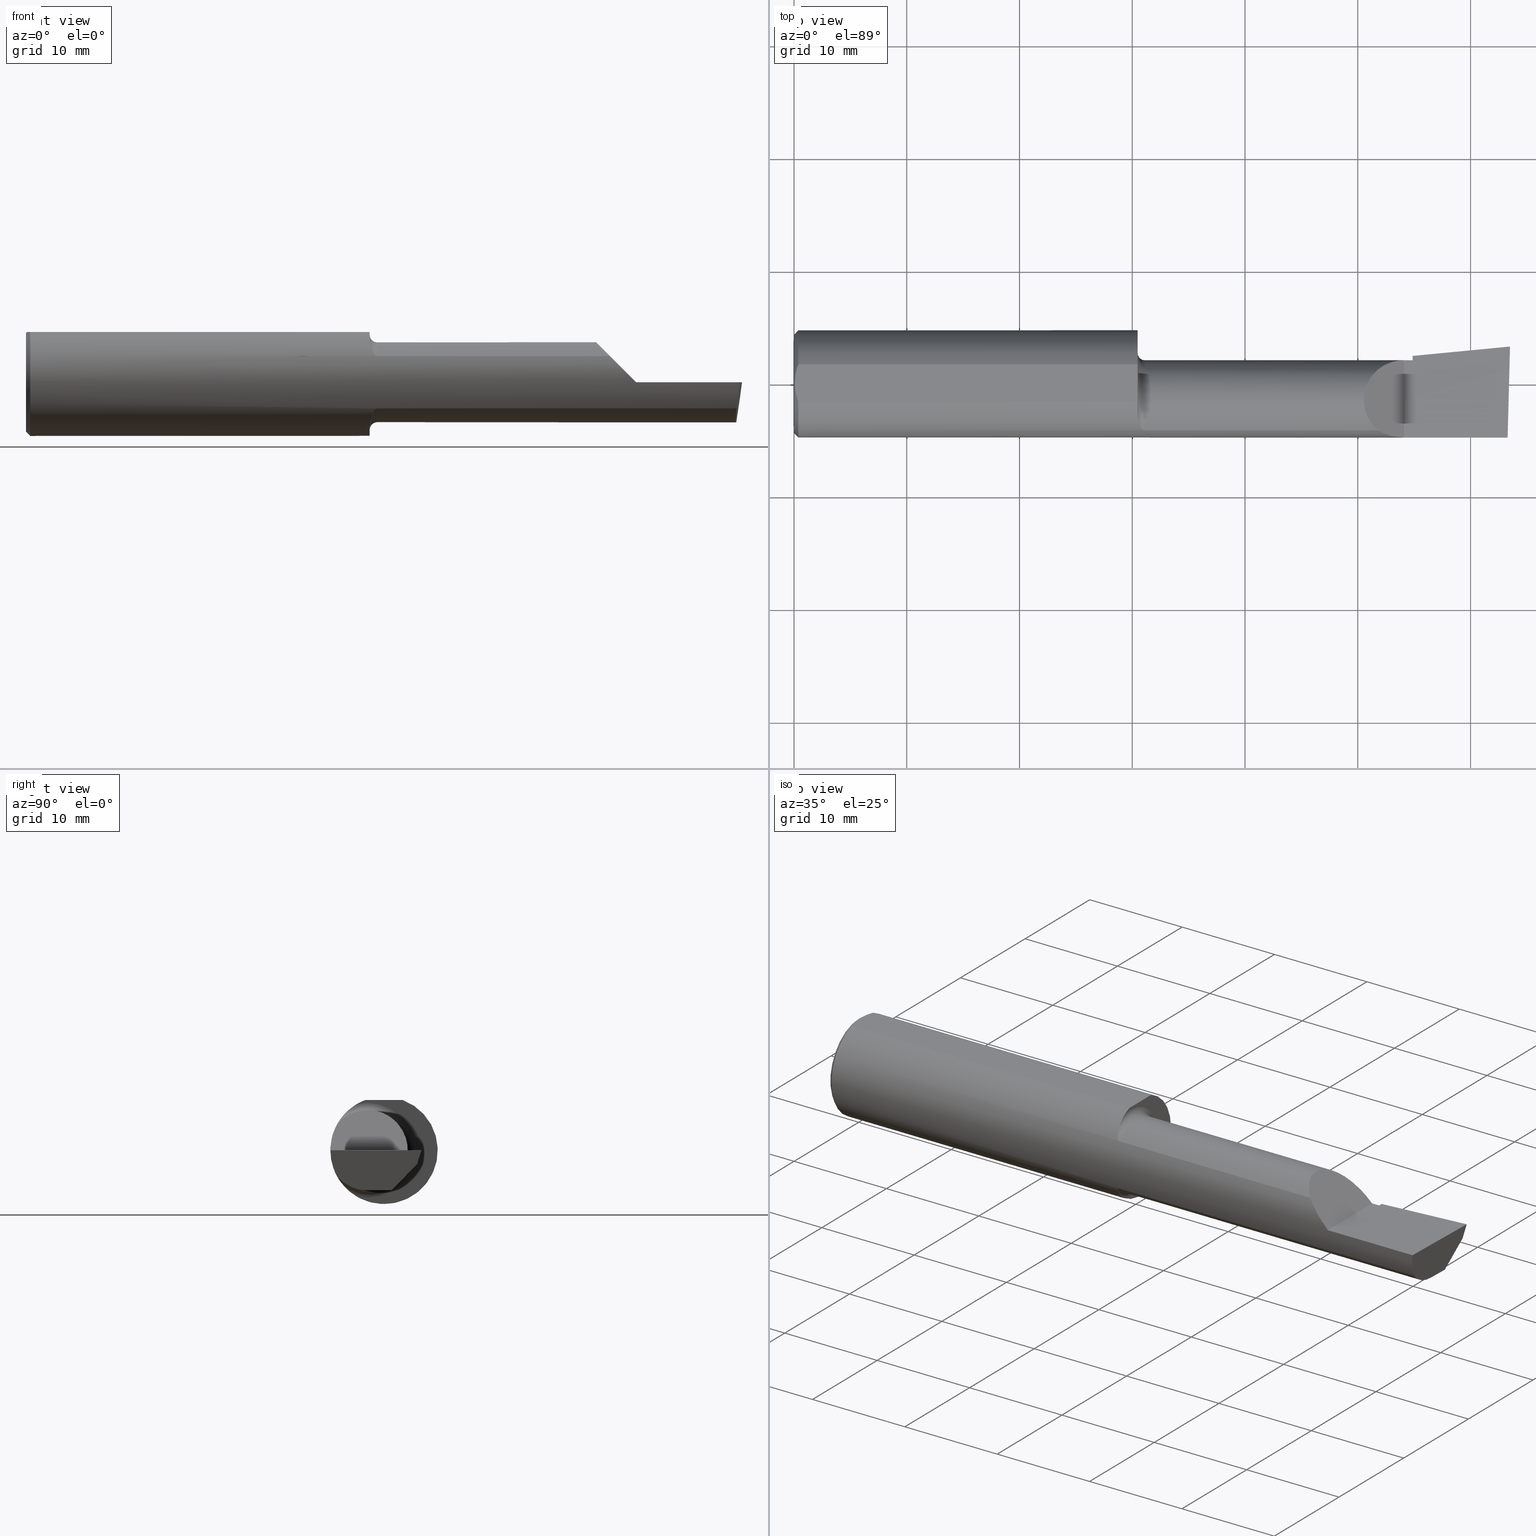
[diagram: canonical four-view strip — front | top / right | iso, engineering-drawing reading convention]
A machine part, canonical four-view strip (front | top / right | iso — engineering-drawing reading convention). The complete STEP part file that produces these views, byte-faithful:
ISO-10303-21;
HEADER;
FILE_DESCRIPTION (( 'STEP AP203' ),
    '1' );
FILE_NAME ('217486-B3201250.STEP',
    '2024-04-26T19:23:14',
    ( '' ),
    ( '' ),
    'SwSTEP 2.0',
    'SolidWorks 2022',
    '' );
FILE_SCHEMA (( 'CONFIG_CONTROL_DESIGN' ));
ENDSEC;

DATA;
#1 = ORIENTED_EDGE ( 'NONE', *, *, #584, .F. ) ;
#2 = APPROVAL_DATE_TIME ( #190, #136 ) ;
#3 = ORIENTED_EDGE ( 'NONE', *, *, #46, .F. ) ;
#4 = LOCAL_TIME ( 12, 23, 14.00000000000000000, #89 ) ;
#5 = ADVANCED_FACE ( 'NONE', ( #100 ), #456, .F. ) ;
#6 = CARTESIAN_POINT ( 'NONE',  ( 2.066758987970638284, -0.1792580844883770730, 0.06324101202936138755 ) ) ;
#7 = ORIENTED_EDGE ( 'NONE', *, *, #411, .F. ) ;
#8 = APPROVAL_ROLE ( '' ) ;
#9 = CARTESIAN_POINT ( 'NONE',  ( 2.038695632261437130, -0.1635956445993029529, 0.09130436773856188959 ) ) ;
#10 = EDGE_CURVE ( 'NONE', #245, #576, #148, .T. ) ;
#11 = ORIENTED_EDGE ( 'NONE', *, *, #156, .F. ) ;
#12 = ADVANCED_FACE ( 'NONE', ( #348 ), #497, .T. ) ;
#13 = AXIS2_PLACEMENT_3D ( 'NONE', #99, #603, #356 ) ;
#14 = DIRECTION ( 'NONE',  ( -0.9953961983671800740, -0.09584575252021031166, 0.000000000000000000 ) ) ;
#15 = LOCAL_TIME ( 12, 23, 14.00000000000000000, #588 ) ;
#16 = ORIENTED_EDGE ( 'NONE', *, *, #217, .T. ) ;
#17 = FACE_OUTER_BOUND ( 'NONE', #329, .T. ) ;
#18 = DIRECTION ( 'NONE',  ( 0.000000000000000000, 0.000000000000000000, 1.000000000000000000 ) ) ;
#19 = CARTESIAN_POINT ( 'NONE',  ( 1.199999999999999956, -0.05740000000000000657, 0.000000000000000000 ) ) ;
#20 = FACE_OUTER_BOUND ( 'NONE', #145, .T. ) ;
#21 = AXIS2_PLACEMENT_3D ( 'NONE', #495, #151, #500 ) ;
#22 = DIRECTION ( 'NONE',  ( 0.000000000000000000, 0.000000000000000000, 1.000000000000000000 ) ) ;
#23 = CARTESIAN_POINT ( 'NONE',  ( 1.199999999999999956, -0.09715400696864127938, 0.1601908905959923690 ) ) ;
#24 = CARTESIAN_POINT ( 'NONE',  ( 2.160000000000000142, -0.05739999999999999963, 0.000000000000000000 ) ) ;
#25 = ORIENTED_EDGE ( 'NONE', *, *, #63, .F. ) ;
#26 = CARTESIAN_POINT ( 'NONE',  ( 1.218001859868117043, -0.1612625562479372554, 0.09537826053888157074 ) ) ;
#27 = DIRECTION ( 'NONE',  ( -1.000000000000000000, -0.000000000000000000, -0.000000000000000000 ) ) ;
#28 = EDGE_CURVE ( 'NONE', #187, #472, #323, .T. ) ;
#29 = VERTEX_POINT ( 'NONE', #387 ) ;
#30 = DIRECTION ( 'NONE',  ( -1.000000000000000000, -6.829619984160658046E-18, 0.000000000000000000 ) ) ;
#31 = CIRCLE ( 'NONE', #340, 0.1400499999999999245 ) ;
#32 = DIRECTION ( 'NONE',  ( 0.000000000000000000, 1.000000000000000000, 0.000000000000000000 ) ) ;
#33 = ORGANIZATION ( 'UNSPECIFIED', 'UNSPECIFIED', '' ) ;
#34 = DIRECTION ( 'NONE',  ( 4.755568962650853567E-18, -0.6963153109074925462, -0.7177360153954948085 ) ) ;
#35 = DIRECTION ( 'NONE',  ( -1.000000000000000000, -6.829619984160658046E-18, 0.000000000000000000 ) ) ;
#36 = ORIENTED_EDGE ( 'NONE', *, *, #164, .T. ) ;
#37 = CARTESIAN_POINT ( 'NONE',  ( 1.199999999999999956, 0.2373500000000000332, 0.1753499999999999504 ) ) ;
#38 = CARTESIAN_POINT ( 'NONE',  ( 1.206145841430604104, -0.1426194794824340584, -0.1217813759115465855 ) ) ;
#39 = ORIENTED_EDGE ( 'NONE', *, *, #242, .F. ) ;
#40 = PERSON_AND_ORGANIZATION ( #272, #33 ) ;
#41 = CARTESIAN_POINT ( 'NONE',  ( 2.129999999999999893, -0.1873499999999999888, 1.065442715258197396E-16 ) ) ;
#42 = VERTEX_POINT ( 'NONE', #310 ) ;
#43 = APPROVAL ( #132, 'UNSPECIFIED' ) ;
#44 = ORIENTED_EDGE ( 'NONE', *, *, #156, .T. ) ;
#45 = ORIENTED_EDGE ( 'NONE', *, *, #545, .T. ) ;
#46 = EDGE_CURVE ( 'NONE', #237, #618, #129, .T. ) ;
#47 = PERSON_AND_ORGANIZATION_ROLE ( 'creator' ) ;
#48 = B_SPLINE_CURVE_WITH_KNOTS ( 'NONE', 3,
 ( #467, #374, #133, #83, #93, #174, #275, #328, #38, #424, #537, #475, #491, #182 ),
 .UNSPECIFIED., .F., .F.,
 ( 4, 2, 2, 2, 2, 2, 4 ),
 ( 1.968340875534775581E-07, 0.0001667114270246291413, 0.0003332260199617048126, 0.0006662552058358523063, 0.001332313577584147294, 0.001998371949332442606, 0.002664430321080737702 ),
 .UNSPECIFIED. ) ;
#49 = VERTEX_POINT ( 'NONE', #453 ) ;
#50 =( NAMED_UNIT ( * ) SI_UNIT ( $, .STERADIAN. ) SOLID_ANGLE_UNIT ( ) );
#51 = PLANE ( 'NONE',  #468 ) ;
#52 = ORIENTED_EDGE ( 'NONE', *, *, #518, .T. ) ;
#53 = DIRECTION ( 'NONE',  ( 1.000000000000000000, 0.000000000000000000, 0.000000000000000000 ) ) ;
#54 = VERTEX_POINT ( 'NONE', #121 ) ;
#55 = FACE_OUTER_BOUND ( 'NONE', #351, .T. ) ;
#56 = ORIENTED_EDGE ( 'NONE', *, *, #28, .F. ) ;
#57 = DATE_AND_TIME ( #450, #15 ) ;
#58 = VECTOR ( 'NONE', #573, 39.37007874015748143 ) ;
#59 = LINE ( 'NONE', #598, #220 ) ;
#60 = EDGE_CURVE ( 'NONE', #175, #54, #579, .T. ) ;
#61 = DIRECTION ( 'NONE',  ( -1.000000000000000000, -6.829619984160658046E-18, -0.000000000000000000 ) ) ;
#62 = DIRECTION ( 'NONE',  ( -1.000000000000000000, -6.829619984160658046E-18, -0.000000000000000000 ) ) ;
#63 = EDGE_CURVE ( 'NONE', #54, #175, #181, .T. ) ;
#64 = CARTESIAN_POINT ( 'NONE',  ( 1.921229036482944075, -0.06260079402492431389, 0.2087709635170537925 ) ) ;
#65 = CARTESIAN_POINT ( 'NONE',  ( 1.199999999999999956, -0.06597272163553659363, 0.1753499999999999781 ) ) ;
#66 = CIRCLE ( 'NONE', #306, 0.1873499999999999888 ) ;
#67 = AXIS2_PLACEMENT_3D ( 'NONE', #494, #155, #309 ) ;
#68 = FACE_OUTER_BOUND ( 'NONE', #281, .T. ) ;
#69 = CARTESIAN_POINT ( 'NONE',  ( 1.208072954143140088, -0.1479074971576200548, 0.1152872342625229363 ) ) ;
#70 = EDGE_CURVE ( 'NONE', #342, #364, #505, .T. ) ;
#71 = CARTESIAN_POINT ( 'NONE',  ( 0.003000000000000169632, 0.01127363201155560934, 0.1753499999999999781 ) ) ;
#72 = ORIENTED_EDGE ( 'NONE', *, *, #177, .F. ) ;
#73 = FACE_OUTER_BOUND ( 'NONE', #147, .T. ) ;
#74 = CYLINDRICAL_SURFACE ( 'NONE', #171, 0.1873499999999999888 ) ;
#75 = LINE ( 'NONE', #114, #120 ) ;
#76 = VECTOR ( 'NONE', #319, 39.37007874015748854 ) ;
#77 = CARTESIAN_POINT ( 'NONE',  ( 2.477925907309857401, -0.1365595166907236646, -0.1227499502647107360 ) ) ;
#78 = ADVANCED_FACE ( 'NONE', ( #559 ), #357, .F. ) ;
#79 = VERTEX_POINT ( 'NONE', #354 ) ;
#80 = DIRECTION ( 'NONE',  ( -0.7071067811865439090, 0.000000000000000000, -0.7071067811865512365 ) ) ;
#81 = LINE ( 'NONE', #280, #538 ) ;
#82 = ORIENTED_EDGE ( 'NONE', *, *, #263, .F. ) ;
#83 = CARTESIAN_POINT ( 'NONE',  ( 1.217975941902153636, -0.1612443294219082224, -0.09540922431498180534 ) ) ;
#84 = ORIENTED_EDGE ( 'NONE', *, *, #223, .T. ) ;
#85 = DIRECTION ( 'NONE',  ( 0.000000000000000000, 0.000000000000000000, 1.000000000000000000 ) ) ;
#86 = VECTOR ( 'NONE', #525, 39.37007874015748143 ) ;
#87 = ORIENTED_EDGE ( 'NONE', *, *, #10, .F. ) ;
#88 = AXIS2_PLACEMENT_3D ( 'NONE', #262, #80, #312 ) ;
#89 = COORDINATED_UNIVERSAL_TIME_OFFSET ( 8, 0, .BEHIND. ) ;
#90 = EDGE_CURVE ( 'NONE', #332, #218, #283, .T. ) ;
#91 = EDGE_LOOP ( 'NONE', ( #25, #487, #36, #179, #479 ) ) ;
#92 = ORIENTED_EDGE ( 'NONE', *, *, #63, .T. ) ;
#93 = CARTESIAN_POINT ( 'NONE',  ( 1.216814909379088760, -0.1602818635245160106, -0.09702252612905261364 ) ) ;
#94 = EDGE_LOOP ( 'NONE', ( #543, #39, #252 ) ) ;
#95 = ADVANCED_FACE ( 'NONE', ( #17 ), #74, .T. ) ;
#96 = AXIS2_PLACEMENT_3D ( 'NONE', #259, #208, #403 ) ;
#97 = PERSON_AND_ORGANIZATION ( #272, #33 ) ;
#98 = AXIS2_PLACEMENT_3D ( 'NONE', #513, #320, #226 ) ;
#99 = CARTESIAN_POINT ( 'NONE',  ( 1.199999999999999956, 0.1076499999999999124, 0.000000000000000000 ) ) ;
#100 = FACE_OUTER_BOUND ( 'NONE', #276, .T. ) ;
#101 = APPROVAL_STATUS ( 'not_yet_approved' ) ;
#102 = LINE ( 'NONE', #112, #250 ) ;
#103 = VERTEX_POINT ( 'NONE', #157 ) ;
#104 = LINE ( 'NONE', #498, #600 ) ;
#105 =( BOUNDED_CURVE ( )  B_SPLINE_CURVE ( 3, ( #617, #77, #337, #522 ),
 .UNSPECIFIED., .F., .T. ) 
 B_SPLINE_CURVE_WITH_KNOTS ( ( 4, 4 ),
 ( 5.632580117768154260, 6.493234751459282528 ),
 .UNSPECIFIED. ) 
 CURVE ( )  GEOMETRIC_REPRESENTATION_ITEM ( )  RATIONAL_B_SPLINE_CURVE ( ( 1.000000000000000000, 0.9392195014330942948, 0.9392195014330942948, 1.000000000000000000 ) ) 
 REPRESENTATION_ITEM ( '' )  );
#106 = B_SPLINE_CURVE_WITH_KNOTS ( 'NONE', 3,
 ( #464, #172, #602, #368, #563, #162 ),
 .UNSPECIFIED., .F., .F.,
 ( 4, 2, 4 ),
 ( 0.001779942938356815062, 0.002629978419973711019, 0.003480013901590607410 ),
 .UNSPECIFIED. ) ;
#107 = ORIENTED_EDGE ( 'NONE', *, *, #90, .T. ) ;
#108 = VECTOR ( 'NONE', #396, 39.37007874015748143 ) ;
#109 = CARTESIAN_POINT ( 'NONE',  ( 2.493766568580444432, 0.1168246249203733628, -0.04780233936830585728 ) ) ;
#110 = CARTESIAN_POINT ( 'NONE',  ( 0.01499999999999999424, 0.06597272163553663527, 0.1753499999999999781 ) ) ;
#111 = ADVANCED_FACE ( 'NONE', ( #554 ), #551, .F. ) ;
#112 = CARTESIAN_POINT ( 'NONE',  ( 0.01499999999999999424, 2.294375778202566330E-17, 0.1873499999999999888 ) ) ;
#113 = DIRECTION ( 'NONE',  ( 0.000000000000000000, -1.000000000000000000, -1.776356839400250465E-15 ) ) ;
#114 = CARTESIAN_POINT ( 'NONE',  ( 2.160000000000000142, 0.06382066673065307782, -0.06931012851386068874 ) ) ;
#115 = DIRECTION ( 'NONE',  ( 2.005228508682077051E-18, -0.2936076258024061247, -0.9559260233253795702 ) ) ;
#116 = EDGE_CURVE ( 'NONE', #529, #383, #549, .T. ) ;
#117 = VERTEX_POINT ( 'NONE', #400 ) ;
#118 = CARTESIAN_POINT ( 'NONE',  ( 2.160000000000000142, 0.06382066673065307782, -0.06931012851386068874 ) ) ;
#119 = EDGE_CURVE ( 'NONE', #243, #245, #394, .T. ) ;
#120 = VECTOR ( 'NONE', #418, 39.37007874015748143 ) ;
#121 = CARTESIAN_POINT ( 'NONE',  ( 0.000000000000000000, 2.202527268266512578E-17, 0.1723499999999996424 ) ) ;
#122 = ORIENTED_EDGE ( 'NONE', *, *, #60, .T. ) ;
#123 = FACE_OUTER_BOUND ( 'NONE', #94, .T. ) ;
#124 = DIRECTION ( 'NONE',  ( -1.000000000000000000, -0.000000000000000000, -0.000000000000000000 ) ) ;
#125 = LINE ( 'NONE', #616, #140 ) ;
#126 = CARTESIAN_POINT ( 'NONE',  ( 0.000000000000000000, 0.000000000000000000, -0.1723499999999996424 ) ) ;
#127 = EDGE_LOOP ( 'NONE', ( #154, #45 ) ) ;
#128 = CARTESIAN_POINT ( 'NONE',  ( 1.206142321956750418, -0.1426151417460931881, 0.1217894822571231050 ) ) ;
#129 = CIRCLE ( 'NONE', #589, 0.1400499999999999801 ) ;
#130 = CARTESIAN_POINT ( 'NONE',  ( 2.160000000000000142, 0.01441505128072288582, -0.1202356058309980713 ) ) ;
#131 = ORIENTED_EDGE ( 'NONE', *, *, #119, .F. ) ;
#132 = APPROVAL_STATUS ( 'not_yet_approved' ) ;
#133 = CARTESIAN_POINT ( 'NONE',  ( 1.220881499230870304, -0.1628722075910993550, -0.09260290410947824569 ) ) ;
#134 = ORIENTED_EDGE ( 'NONE', *, *, #279, .F. ) ;
#135 = ORIENTED_EDGE ( 'NONE', *, *, #501, .F. ) ;
#136 = APPROVAL ( #388, 'UNSPECIFIED' ) ;
#137 = CALENDAR_DATE ( 2024, 26, 4 ) ;
#138 = AXIS2_PLACEMENT_3D ( 'NONE', #304, #352, #210 ) ;
#139 = EDGE_LOOP ( 'NONE', ( #305, #567, #295, #608, #476 ) ) ;
#140 = VECTOR ( 'NONE', #568, 39.37007874015748143 ) ;
#141 = LENGTH_MEASURE_WITH_UNIT ( LENGTH_MEASURE( 0.02539999999999999897 ), #527 );
#142 = DIRECTION ( 'NONE',  ( 6.829619984160658816E-18, -1.000000000000000000, 0.000000000000000000 ) ) ;
#143 = PERSON_AND_ORGANIZATION_ROLE ( 'design_supplier' ) ;
#144 = CARTESIAN_POINT ( 'NONE',  ( 2.481080296960508580, -0.1635956445993030639, -0.09130436773856169530 ) ) ;
#145 = EDGE_LOOP ( 'NONE', ( #574, #379, #326, #189, #361, #526 ) ) ;
#146 = DIRECTION ( 'NONE',  ( 0.000000000000000000, 1.000000000000000000, 8.537024980200821325E-17 ) ) ;
#147 = EDGE_LOOP ( 'NONE', ( #11, #612, #194 ) ) ;
#148 = CIRCLE ( 'NONE', #21, 0.1873499999999999888 ) ;
#149 = CC_DESIGN_APPROVAL ( #288, ( #624 ) ) ;
#150 = CARTESIAN_POINT ( 'NONE',  ( 2.160000000000000142, 0.08255448787293394319, -0.04999999999999999584 ) ) ;
#151 = DIRECTION ( 'NONE',  ( 1.000000000000000000, 6.829619984160658046E-18, 0.000000000000000000 ) ) ;
#152 = ADVANCED_FACE ( 'NONE', ( #68 ), #360, .T. ) ;
#153 = PLANE ( 'NONE',  #138 ) ;
#154 = ORIENTED_EDGE ( 'NONE', *, *, #46, .T. ) ;
#155 = DIRECTION ( 'NONE',  ( -0.06894566448119619773, 0.7160281025913034503, -0.6946583704589934793 ) ) ;
#156 = EDGE_CURVE ( 'NONE', #237, #184, #558, .T. ) ;
#157 = CARTESIAN_POINT ( 'NONE',  ( 1.225000000000000089, -0.1635956445993032859, -0.09130436773856132060 ) ) ;
#158 = APPROVAL_DATE_TIME ( #349, #288 ) ;
#159 = AXIS2_PLACEMENT_3D ( 'NONE', #248, #61, #202 ) ;
#160 = CARTESIAN_POINT ( 'NONE',  ( 0.000000000000000000, 0.06597272163553663527, 0.1753499999999999781 ) ) ;
#161 = CC_DESIGN_APPROVAL ( #43, ( #439 ) ) ;
#162 = CARTESIAN_POINT ( 'NONE',  ( 0.003000000000000218638, 2.334609556160449697E-17, 0.1753499999999999781 ) ) ;
#163 = DIRECTION ( 'NONE',  ( -1.000000000000000000, -6.829619984160658046E-18, -0.000000000000000000 ) ) ;
#164 = EDGE_CURVE ( 'NONE', #117, #465, #413, .T. ) ;
#165 = CARTESIAN_POINT ( 'NONE',  ( 1.975085956200449022, 0.08264999999999997349, 0.1549140437995493169 ) ) ;
#166 = EDGE_CURVE ( 'NONE', #512, #117, #106, .T. ) ;
#167 = CARTESIAN_POINT ( 'NONE',  ( 2.491672876940991710, -0.1873499999999999888, 6.915950918908297591E-17 ) ) ;
#168 = CARTESIAN_POINT ( 'NONE',  ( 2.160000000000000142, 0.09456875743780468468, -0.01088401009027229437 ) ) ;
#169 = ORIENTED_EDGE ( 'NONE', *, *, #204, .T. ) ;
#170 = CARTESIAN_POINT ( 'NONE',  ( 1.220903862568968989, -0.1628809688430622460, 0.09258733509388460126 ) ) ;
#171 = AXIS2_PLACEMENT_3D ( 'NONE', #455, #27, #22 ) ;
#172 = CARTESIAN_POINT ( 'NONE',  ( 0.01128414053810044941, -0.05542038647445821781, 0.1753499999999999781 ) ) ;
#173 = DIRECTION ( 'NONE',  ( 6.829619984160658046E-18, -1.000000000000000000, 1.438723400918613551E-16 ) ) ;
#174 = CARTESIAN_POINT ( 'NONE',  ( 1.213743174082349885, -0.1572750258711011206, -0.1018777902325210677 ) ) ;
#175 = VERTEX_POINT ( 'NONE', #126 ) ;
#176 = CARTESIAN_POINT ( 'NONE',  ( 1.203025912205683667, -0.1310442973014115942, 0.1341609063345042263 ) ) ;
#177 = EDGE_CURVE ( 'NONE', #465, #79, #66, .T. ) ;
#178 = CARTESIAN_POINT ( 'NONE',  ( 2.038695632261437130, -0.1635956445993029529, 0.09130436773856188959 ) ) ;
#179 = ORIENTED_EDGE ( 'NONE', *, *, #177, .T. ) ;
#180 = CARTESIAN_POINT ( 'NONE',  ( 0.01499999999999997863, -0.06597272163553657975, 0.1753499999999999781 ) ) ;
#181 = CIRCLE ( 'NONE', #480, 0.1723499999999996424 ) ;
#182 = CARTESIAN_POINT ( 'NONE',  ( 1.199999999999999956, -0.09715400696864127938, -0.1601908905959923690 ) ) ;
#183 = AXIS2_PLACEMENT_3D ( 'NONE', #384, #580, #481 ) ;
#184 = VERTEX_POINT ( 'NONE', #221 ) ;
#185 = APPROVAL_DATE_TIME ( #577, #43 ) ;
#186 = DIRECTION ( 'NONE',  ( -6.829619984160658816E-18, 1.000000000000000000, 7.059994452165177242E-34 ) ) ;
#187 = VERTEX_POINT ( 'NONE', #144 ) ;
#188 = EDGE_CURVE ( 'NONE', #472, #381, #321, .T. ) ;
#189 = ORIENTED_EDGE ( 'NONE', *, *, #545, .F. ) ;
#190 = DATE_AND_TIME ( #287, #4 ) ;
#191 = VECTOR ( 'NONE', #146, 39.37007874015748143 ) ;
#192 = VECTOR ( 'NONE', #268, 39.37007874015748143 ) ;
#193 = PERSON_AND_ORGANIZATION ( #272, #33 ) ;
#194 = ORIENTED_EDGE ( 'NONE', *, *, #233, .F. ) ;
#195 = FACE_OUTER_BOUND ( 'NONE', #447, .T. ) ;
#196 = ORIENTED_EDGE ( 'NONE', *, *, #302, .F. ) ;
#197 = DIRECTION ( 'NONE',  ( -1.000000000000000000, -0.000000000000000000, -0.000000000000000000 ) ) ;
#198 = ORIENTED_EDGE ( 'NONE', *, *, #116, .T. ) ;
#199 = AXIS2_PLACEMENT_3D ( 'NONE', #420, #30, #219 ) ;
#200 = COORDINATED_UNIVERSAL_TIME_OFFSET ( 8, 0, .BEHIND. ) ;
#201 = DIRECTION ( 'NONE',  ( 0.1053106618240634978, 0.6976485211320199165, 0.7086580314005359593 ) ) ;
#202 = DIRECTION ( 'NONE',  ( 6.829619984160658816E-18, -1.000000000000000000, 0.000000000000000000 ) ) ;
#203 = CALENDAR_DATE ( 2024, 26, 4 ) ;
#204 = EDGE_CURVE ( 'NONE', #175, #79, #516, .T. ) ;
#205 = DIRECTION ( 'NONE',  ( -1.033731667140896077E-16, 0.000000000000000000, -1.000000000000000000 ) ) ;
#206 = CARTESIAN_POINT ( 'NONE',  ( 0.003000000000000218638, 2.334609556160449697E-17, 0.1753499999999999781 ) ) ;
#207 = FACE_OUTER_BOUND ( 'NONE', #490, .T. ) ;
#208 = DIRECTION ( 'NONE',  ( -0.09165774897393341725, 0.9519021185660614393, -0.2923717047227303301 ) ) ;
#209 = AXIS2_PLACEMENT_3D ( 'NONE', #293, #241, #32 ) ;
#210 = DIRECTION ( 'NONE',  ( 0.000000000000000000, 1.000000000000000000, -1.438723400918613551E-16 ) ) ;
#211 = DIRECTION ( 'NONE',  ( 0.1219104985251942275, 0.000000000000000000, 0.9925410975618785825 ) ) ;
#212 = CARTESIAN_POINT ( 'NONE',  ( 1.200383728133729955, -0.1114837668894152756, 0.1508119329971095712 ) ) ;
#213 = DIRECTION ( 'NONE',  ( -1.000000000000000000, -6.829619984160658046E-18, -0.000000000000000000 ) ) ;
#214 = ORIENTED_EDGE ( 'NONE', *, *, #343, .T. ) ;
#215 = CARTESIAN_POINT ( 'NONE',  ( 1.213764108097883154, -0.1573043405450773591, 0.1018329020719633271 ) ) ;
#216 = CARTESIAN_POINT ( 'NONE',  ( 2.475850273311264615, -0.1244607267090816621, -0.1422282308645907711 ) ) ;
#217 = EDGE_CURVE ( 'NONE', #187, #228, #105, .T. ) ;
#218 = VERTEX_POINT ( 'NONE', #471 ) ;
#219 = DIRECTION ( 'NONE',  ( 6.829619984160658046E-18, -1.000000000000000000, 0.000000000000000000 ) ) ;
#220 = VECTOR ( 'NONE', #405, 39.37007874015748143 ) ;
#221 = CARTESIAN_POINT ( 'NONE',  ( 2.160000000000000142, -0.05739999999999999963, -0.1400500000000000633 ) ) ;
#222 = CARTESIAN_POINT ( 'NONE',  ( 1.199999999999999734, -0.1045012500212954693, 0.1557348687830034384 ) ) ;
#223 = EDGE_CURVE ( 'NONE', #342, #228, #569, .T. ) ;
#224 = CARTESIAN_POINT ( 'NONE',  ( 0.01499999999999999424, 0.000000000000000000, 0.000000000000000000 ) ) ;
#225 = ORIENTED_EDGE ( 'NONE', *, *, #233, .T. ) ;
#226 = DIRECTION ( 'NONE',  ( 0.000000000000000000, 0.000000000000000000, -1.000000000000000000 ) ) ;
#227 = DIRECTION ( 'NONE',  ( -1.000000000000000000, -0.000000000000000000, -0.000000000000000000 ) ) ;
#228 = VERTEX_POINT ( 'NONE', #586 ) ;
#229 = PERSON_AND_ORGANIZATION_ROLE ( 'classification_officer' ) ;
#230 = VECTOR ( 'NONE', #521, 39.37007874015748143 ) ;
#231 = CONICAL_SURFACE ( 'NONE', #98, 0.1873499999999999888, 0.7853981633974602694 ) ;
#232 = CARTESIAN_POINT ( 'NONE',  ( 2.160000000000000142, -0.05739999999999999963, -0.1400500000000000633 ) ) ;
#233 = EDGE_CURVE ( 'NONE', #184, #364, #621, .T. ) ;
#234 = ORIENTED_EDGE ( 'NONE', *, *, #217, .F. ) ;
#235 = ORIENTED_EDGE ( 'NONE', *, *, #451, .F. ) ;
#236 = PERSON_AND_ORGANIZATION ( #272, #33 ) ;
#237 = VERTEX_POINT ( 'NONE', #130 ) ;
#238 = PERSON_AND_ORGANIZATION ( #272, #33 ) ;
#239 = ORIENTED_EDGE ( 'NONE', *, *, #460, .T. ) ;
#240 = MECHANICAL_CONTEXT ( 'NONE', #406, 'mechanical' ) ;
#241 = DIRECTION ( 'NONE',  ( 1.000000000000000000, 6.829619984160658046E-18, 0.000000000000000000 ) ) ;
#242 = EDGE_CURVE ( 'NONE', #546, #332, #347, .T. ) ;
#243 = VERTEX_POINT ( 'NONE', #427 ) ;
#244 = FACE_OUTER_BOUND ( 'NONE', #587, .T. ) ;
#245 = VERTEX_POINT ( 'NONE', #440 ) ;
#246 = FACE_OUTER_BOUND ( 'NONE', #139, .T. ) ;
#247 = CC_DESIGN_DATE_AND_TIME_ASSIGNMENT ( #531, #327, ( #439 ) ) ;
#248 = CARTESIAN_POINT ( 'NONE',  ( 0.000000000000000000, -0.05740000000000001351, 0.000000000000000000 ) ) ;
#249 = ADVANCED_FACE ( 'NONE', ( #195 ), #51, .T. ) ;
#250 = VECTOR ( 'NONE', #504, 39.37007874015748143 ) ;
#251 = CARTESIAN_POINT ( 'NONE',  ( 1.225000000000000089, -0.05740000000000000657, 0.000000000000000000 ) ) ;
#252 = ORIENTED_EDGE ( 'NONE', *, *, #501, .T. ) ;
#253 = CARTESIAN_POINT ( 'NONE',  ( 0.5470260790800316464, -0.05740000000000000657, 2.701812985571356346E-16 ) ) ;
#254 = CARTESIAN_POINT ( 'NONE',  ( 2.038695632261437130, -0.1635956445993029529, 0.09130436773856188959 ) ) ;
#255 = EDGE_CURVE ( 'NONE', #29, #529, #81, .T. ) ;
#256 = DIRECTION ( 'NONE',  ( 1.000000000000000000, 6.829619984160658046E-18, 0.000000000000000000 ) ) ;
#257 = CARTESIAN_POINT ( 'NONE',  ( 0.000000000000000000, 0.000000000000000000, 0.000000000000000000 ) ) ;
#258 = CARTESIAN_POINT ( 'NONE',  ( 2.160000000000000142, -0.05739999999999999963, 0.000000000000000000 ) ) ;
#259 = CARTESIAN_POINT ( 'NONE',  ( 2.509953961983673043, 0.1316084575252021716, -6.829619984160658046E-17 ) ) ;
#260 = PRODUCT_DEFINITION_SHAPE ( 'NONE', 'NONE',  #439 ) ;
#261 = ORIENTED_EDGE ( 'NONE', *, *, #255, .F. ) ;
#262 = CARTESIAN_POINT ( 'NONE',  ( 2.129999999999999893, -0.2500000000000000555, 1.065442715258197396E-16 ) ) ;
#263 = EDGE_CURVE ( 'NONE', #103, #245, #48, .T. ) ;
#264 = CARTESIAN_POINT ( 'NONE',  ( 0.008244775919947424855, 0.04453482769755855164, 0.1753499999999999504 ) ) ;
#265 = PLANE ( 'NONE',  #199 ) ;
#266 = CARTESIAN_POINT ( 'NONE',  ( 2.160000000000000142, 0.09791172361283667636, 0.000000000000000000 ) ) ;
#267 = EDGE_CURVE ( 'NONE', #49, #332, #370, .T. ) ;
#268 = DIRECTION ( 'NONE',  ( -0.000000000000000000, 1.000000000000000000, -0.000000000000000000 ) ) ;
#269 = VECTOR ( 'NONE', #163, 39.37007874015748143 ) ;
#270 = VECTOR ( 'NONE', #173, 39.37007874015748143 ) ;
#271 = CARTESIAN_POINT ( 'NONE',  ( 2.490039159128059953, -0.2497391662021650194, 6.932588350567417155E-17 ) ) ;
#272 = PERSON ( 'UNSPECIFIED', 'UNSPECIFIED', 'UNSPECIFIED', ('UNSPECIFIED'), ('UNSPECIFIED'), ('UNSPECIFIED') ) ;
#273 = ORIENTED_EDGE ( 'NONE', *, *, #411, .T. ) ;
#274 = LINE ( 'NONE', #118, #446 ) ;
#275 = CARTESIAN_POINT ( 'NONE',  ( 1.212184598714912687, -0.1550322129197699017, -0.1052705638704079516 ) ) ;
#276 = EDGE_LOOP ( 'NONE', ( #437, #214, #412, #131 ) ) ;
#277 = CC_DESIGN_PERSON_AND_ORGANIZATION_ASSIGNMENT ( #290, #582, ( #436 ) ) ;
#278 = SECURITY_CLASSIFICATION_LEVEL ( 'unclassified' ) ;
#279 = EDGE_CURVE ( 'NONE', #42, #381, #478, .T. ) ;
#280 = CARTESIAN_POINT ( 'NONE',  ( 2.160000000000000142, -0.2500000000000000555, 1.034430765243970311E-16 ) ) ;
#281 = EDGE_LOOP ( 'NONE', ( #134, #416, #433, #273 ) ) ;
#282 = COORDINATED_UNIVERSAL_TIME_OFFSET ( 8, 0, .BEHIND. ) ;
#283 =( BOUNDED_CURVE ( )  B_SPLINE_CURVE ( 3, ( #254, #64, #165, #514 ),
 .UNSPECIFIED., .F., .F. ) 
 B_SPLINE_CURVE_WITH_KNOTS ( ( 4, 4 ),
 ( 5.422530673488458852, 7.853981633974482790 ),
 .UNSPECIFIED. ) 
 CURVE ( )  GEOMETRIC_REPRESENTATION_ITEM ( )  RATIONAL_B_SPLINE_CURVE ( ( 1.000000000000000000, 0.5651045289226863666, 0.5651045289226863666, 1.000000000000000000 ) ) 
 REPRESENTATION_ITEM ( '' )  );
#284 = VECTOR ( 'NONE', #391, 39.37007874015748143 ) ;
#285 = LOCAL_TIME ( 12, 23, 14.00000000000000000, #432 ) ;
#286 = ORIENTED_EDGE ( 'NONE', *, *, #302, .T. ) ;
#287 = CALENDAR_DATE ( 2024, 26, 4 ) ;
#288 = APPROVAL ( #101, 'UNSPECIFIED' ) ;
#289 = ORIENTED_EDGE ( 'NONE', *, *, #292, .T. ) ;
#290 = PERSON_AND_ORGANIZATION ( #272, #33 ) ;
#291 = CARTESIAN_POINT ( 'NONE',  ( 2.491672876940991710, -0.1873499999999999888, 6.915950918908297591E-17 ) ) ;
#292 = EDGE_CURVE ( 'NONE', #581, #243, #417, .T. ) ;
#293 = CARTESIAN_POINT ( 'NONE',  ( 1.199999999999999956, 0.000000000000000000, 0.000000000000000000 ) ) ;
#294 = VECTOR ( 'NONE', #583, 39.37007874015748143 ) ;
#295 = ORIENTED_EDGE ( 'NONE', *, *, #164, .F. ) ;
#296 = APPROVAL_PERSON_ORGANIZATION ( #438, #43, #429 ) ;
#297 = LINE ( 'NONE', #590, #269 ) ;
#298 = DIRECTION ( 'NONE',  ( -1.000000000000000000, -6.829619984160658046E-18, -0.000000000000000000 ) ) ;
#299 = B_SPLINE_CURVE_WITH_KNOTS ( 'NONE', 3,
 ( #23, #222, #212, #619, #176, #128, #69, #466, #215, #463, #26, #170, #366, #562 ),
 .UNSPECIFIED., .F., .F.,
 ( 4, 2, 2, 2, 2, 2, 4 ),
 ( 0.0002471551878304231319, 0.0008987327522055655899, 0.001550310316580708102, 0.002201887880955850831, 0.002527676663143422521, 0.002690571054237206414, 0.002853465445330989874 ),
 .UNSPECIFIED. ) ;
#300 = UNCERTAINTY_MEASURE_WITH_UNIT (LENGTH_MEASURE( 1.000000000000000082E-05 ), #486, 'distance_accuracy_value', 'NONE');
#301 = DIRECTION ( 'NONE',  ( 0.000000000000000000, -1.000000000000000000, 0.000000000000000000 ) ) ;
#302 = EDGE_CURVE ( 'NONE', #472, #546, #59, .T. ) ;
#303 = ORIENTED_EDGE ( 'NONE', *, *, #358, .T. ) ;
#304 = CARTESIAN_POINT ( 'NONE',  ( 2.500000000000000000, 0.2373500000000000332, 0.1753499999999999504 ) ) ;
#305 = ORIENTED_EDGE ( 'NONE', *, *, #565, .F. ) ;
#306 = AXIS2_PLACEMENT_3D ( 'NONE', #224, #227, #421 ) ;
#307 = LOCAL_TIME ( 12, 23, 14.00000000000000000, #200 ) ;
#308 = DIRECTION ( 'NONE',  ( 1.000000000000000000, 6.829619984160658046E-18, 0.000000000000000000 ) ) ;
#309 = DIRECTION ( 'NONE',  ( 0.000000000000000000, 0.6963153109074925462, 0.7177360153954946975 ) ) ;
#310 = CARTESIAN_POINT ( 'NONE',  ( 2.493439983562941720, 0.1146611065212078395, -0.04999999999999999584 ) ) ;
#311 = ORIENTED_EDGE ( 'NONE', *, *, #345, .T. ) ;
#312 = DIRECTION ( 'NONE',  ( -0.7071067811865511255, 0.000000000000000000, 0.7071067811865437980 ) ) ;
#313 = DIRECTION ( 'NONE',  ( 0.000000000000000000, 0.000000000000000000, 1.000000000000000000 ) ) ;
#314 = VECTOR ( 'NONE', #115, 39.37007874015748143 ) ;
#315 = CARTESIAN_POINT ( 'NONE',  ( 2.160000000000000142, 0.06382066673065307782, -0.06931012851386068874 ) ) ;
#316 = CARTESIAN_POINT ( 'NONE',  ( 2.500000000000000000, -0.05739999999999999963, -0.1400500000000000633 ) ) ;
#317 = LINE ( 'NONE', #553, #192 ) ;
#318 = ADVANCED_FACE ( 'NONE', ( #246 ), #153, .F. ) ;
#319 = DIRECTION ( 'NONE',  ( -0.9953961983671800740, -0.09584575252021028391, -1.093478026937437971E-17 ) ) ;
#320 = DIRECTION ( 'NONE',  ( 1.000000000000000000, 0.000000000000000000, 0.000000000000000000 ) ) ;
#321 = LINE ( 'NONE', #271, #623 ) ;
#322 = ORIENTED_EDGE ( 'NONE', *, *, #593, .F. ) ;
#323 =( BOUNDED_CURVE ( )  B_SPLINE_CURVE ( 3, ( #335, #397, #534, #291 ),
 .UNSPECIFIED., .F., .F. ) 
 B_SPLINE_CURVE_WITH_KNOTS ( ( 4, 4 ),
 ( 0.8516985021657653698, 1.360746882515200484 ),
 .UNSPECIFIED. ) 
 CURVE ( )  GEOMETRIC_REPRESENTATION_ITEM ( )  RATIONAL_B_SPLINE_CURVE ( ( 1.000000000000000000, 0.9785221379938656705, 0.9785221379938656705, 1.000000000000000000 ) ) 
 REPRESENTATION_ITEM ( '' )  );
#324 = CARTESIAN_POINT ( 'NONE',  ( 2.500000000000000000, -0.05739999999999999963, -0.1400500000000000633 ) ) ;
#325 = VECTOR ( 'NONE', #53, 39.37007874015748143 ) ;
#326 = ORIENTED_EDGE ( 'NONE', *, *, #484, .F. ) ;
#327 = DATE_TIME_ROLE ( 'creation_date' ) ;
#328 = CARTESIAN_POINT ( 'NONE',  ( 1.208068207442170472, -0.1478915270140212235, -0.1153063024254922103 ) ) ;
#329 = EDGE_LOOP ( 'NONE', ( #585, #622, #286, #392, #375, #322, #552, #52, #519, #72, #591, #87, #82 ) ) ;
#330 = CARTESIAN_POINT ( 'NONE',  ( 0.000000000000000000, 0.000000000000000000, 0.000000000000000000 ) ) ;
#331 = EDGE_LOOP ( 'NONE', ( #578, #84, #239, #225 ) ) ;
#332 = VERTEX_POINT ( 'NONE', #9 ) ;
#333 = APPROVAL_ROLE ( '' ) ;
#334 = ADVANCED_FACE ( 'NONE', ( #244 ), #452, .T. ) ;
#335 = CARTESIAN_POINT ( 'NONE',  ( 2.481080296960508580, -0.1635956445993030639, -0.09130436773856169530 ) ) ;
#336 = FACE_OUTER_BOUND ( 'NONE', #127, .T. ) ;
#337 = CARTESIAN_POINT ( 'NONE',  ( 2.476787929832031221, -0.09887019258091189755, -0.1400500000000000078 ) ) ;
#338 = CARTESIAN_POINT ( 'NONE',  ( 1.225000000000000089, -0.05739999999999999963, 0.000000000000000000 ) ) ;
#339 = DIRECTION ( 'NONE',  ( 6.829619984160658046E-18, -1.000000000000000000, 0.000000000000000000 ) ) ;
#340 = AXIS2_PLACEMENT_3D ( 'NONE', #251, #62, #301 ) ;
#341 = AXIS2_PLACEMENT_3D ( 'NONE', #350, #205, #547 ) ;
#342 = VERTEX_POINT ( 'NONE', #544 ) ;
#343 = EDGE_CURVE ( 'NONE', #49, #103, #31, .T. ) ;
#344 = DATE_TIME_ROLE ( 'classification_date' ) ;
#345 = EDGE_CURVE ( 'NONE', #218, #29, #104, .T. ) ;
#346 = CARTESIAN_POINT ( 'NONE',  ( 0.000000000000000000, 0.000000000000000000, 0.000000000000000000 ) ) ;
#347 =( BOUNDED_CURVE ( )  B_SPLINE_CURVE ( 3, ( #41, #378, #6, #178 ),
 .UNSPECIFIED., .F., .T. ) 
 B_SPLINE_CURVE_WITH_KNOTS ( ( 4, 4 ),
 ( 4.712388980384689674, 5.221437360734125122 ),
 .UNSPECIFIED. ) 
 CURVE ( )  GEOMETRIC_REPRESENTATION_ITEM ( )  RATIONAL_B_SPLINE_CURVE ( ( 1.000000000000000000, 0.9785221379938656705, 0.9785221379938656705, 1.000000000000000000 ) ) 
 REPRESENTATION_ITEM ( '' )  );
#348 = FACE_OUTER_BOUND ( 'NONE', #371, .T. ) ;
#349 = DATE_AND_TIME ( #203, #307 ) ;
#350 = CARTESIAN_POINT ( 'NONE',  ( 2.500000000000000000, -0.2500000000000000555, 6.829619984160658046E-17 ) ) ;
#351 = EDGE_LOOP ( 'NONE', ( #196, #605, #7, #261, #441, #135 ) ) ;
#352 = DIRECTION ( 'NONE',  ( 0.000000000000000000, -1.438723400918613551E-16, -1.000000000000000000 ) ) ;
#353 = EDGE_CURVE ( 'NONE', #187, #103, #297, .T. ) ;
#354 = CARTESIAN_POINT ( 'NONE',  ( 0.01499999999999999424, 0.000000000000000000, -0.1873499999999999888 ) ) ;
#355 = APPROVAL_PERSON_ORGANIZATION ( #97, #288, #8 ) ;
#356 = DIRECTION ( 'NONE',  ( -6.829619984160658046E-18, 1.000000000000000000, 0.000000000000000000 ) ) ;
#357 = PLANE ( 'NONE',  #499 ) ;
#358 = EDGE_CURVE ( 'NONE', #342, #42, #454, .T. ) ;
#359 = LINE ( 'NONE', #496, #386 ) ;
#360 = PLANE ( 'NONE',  #96 ) ;
#361 = ORIENTED_EDGE ( 'NONE', *, *, #474, .F. ) ;
#362 = LINE ( 'NONE', #315, #230 ) ;
#363 = CARTESIAN_POINT ( 'NONE',  ( 2.160000000000000142, -0.05739999999999999963, 0.000000000000000000 ) ) ;
#364 = VERTEX_POINT ( 'NONE', #448 ) ;
#365 = CIRCLE ( 'NONE', #445, 0.1873499999999999888 ) ;
#366 = CARTESIAN_POINT ( 'NONE',  ( 1.222800914500664859, -0.1635956445997550635, 0.09130436773775207904 ) ) ;
#367 = EDGE_CURVE ( 'NONE', #465, #576, #444, .T. ) ;
#368 = CARTESIAN_POINT ( 'NONE',  ( 0.004093196532652216939, -0.02240707710020816909, 0.1753499999999999504 ) ) ;
#369 = CARTESIAN_POINT ( 'NONE',  ( 2.160000000000000142, 0.06495571228477951820, -0.06814016562413281741 ) ) ;
#370 = LINE ( 'NONE', #389, #58 ) ;
#371 = EDGE_LOOP ( 'NONE', ( #234, #422, #493, #594, #107, #311, #523, #3, #44, #390 ) ) ;
#372 = CARTESIAN_POINT ( 'NONE',  ( 0.01499999999999999424, 0.06597272163553663527, 0.1753499999999999781 ) ) ;
#373 = ADVANCED_FACE ( 'NONE', ( #55 ), #502, .F. ) ;
#374 = CARTESIAN_POINT ( 'NONE',  ( 1.222779935319434408, -0.1635956445993033415, -0.09130436773856122346 ) ) ;
#375 = ORIENTED_EDGE ( 'NONE', *, *, #267, .F. ) ;
#376 = AXIS2_PLACEMENT_3D ( 'NONE', #338, #298, #142 ) ;
#377 = LOCAL_TIME ( 12, 23, 14.00000000000000000, #282 ) ;
#378 = CARTESIAN_POINT ( 'NONE',  ( 2.097861799102314961, -0.1873500000000000165, 0.03213820089768509858 ) ) ;
#379 = ORIENTED_EDGE ( 'NONE', *, *, #70, .T. ) ;
#380 = APPLICATION_PROTOCOL_DEFINITION ( 'international standard', 'config_control_design', 1994, #406 ) ;
#381 = VERTEX_POINT ( 'NONE', #442 ) ;
#382 = PRODUCT_RELATED_PRODUCT_CATEGORY ( 'detail', '', ( #555 ) ) ;
#383 = VERTEX_POINT ( 'NONE', #150 ) ;
#384 = CARTESIAN_POINT ( 'NONE',  ( 2.160000000000000142, 0.09791172361283667636, 0.000000000000000000 ) ) ;
#385 = EDGE_CURVE ( 'NONE', #79, #512, #365, .T. ) ;
#386 = VECTOR ( 'NONE', #14, 39.37007874015748854 ) ;
#387 = CARTESIAN_POINT ( 'NONE',  ( 2.160000000000000142, 0.08265000000000004288, 3.267291166268306182E-16 ) ) ;
#388 = APPROVAL_STATUS ( 'not_yet_approved' ) ;
#389 = CARTESIAN_POINT ( 'NONE',  ( 1.692500000000000115, -0.1635956445993030639, 0.09130436773856169530 ) ) ;
#390 = ORIENTED_EDGE ( 'NONE', *, *, #460, .F. ) ;
#391 = DIRECTION ( 'NONE',  ( -0.02617694830779365364, -0.9996573249755593693, -8.535148296544462419E-17 ) ) ;
#392 = ORIENTED_EDGE ( 'NONE', *, *, #242, .T. ) ;
#393 = LINE ( 'NONE', #253, #108 ) ;
#394 = CIRCLE ( 'NONE', #530, 0.1650499999999999190 ) ;
#395 = EDGE_LOOP ( 'NONE', ( #235, #443, #169, #425, #533 ) ) ;
#396 = DIRECTION ( 'NONE',  ( 0.9953961983671787417, 0.09584575252022459191, -1.028972571603813720E-16 ) ) ;
#397 = CARTESIAN_POINT ( 'NONE',  ( 2.484117089522337452, -0.1792580844883771285, -0.06324101202936134591 ) ) ;
#398 = EDGE_CURVE ( 'NONE', #42, #383, #359, .T. ) ;
#399 = CARTESIAN_POINT ( 'NONE',  ( 0.01499999999999999424, 0.000000000000000000, 0.000000000000000000 ) ) ;
#400 = CARTESIAN_POINT ( 'NONE',  ( 0.003000000000000218638, 2.334609556160449697E-17, 0.1753499999999999781 ) ) ;
#401 = PLANE ( 'NONE',  #520 ) ;
#402 = ADVANCED_FACE ( 'NONE', ( #20 ), #596, .T. ) ;
#403 = DIRECTION ( 'NONE',  ( 0.000000000000000000, 0.2936076258024060137, 0.9559260233253795702 ) ) ;
#404 = AXIS2_PLACEMENT_3D ( 'NONE', #461, #124, #407 ) ;
#405 = DIRECTION ( 'NONE',  ( -1.000000000000000000, -0.000000000000000000, -0.000000000000000000 ) ) ;
#406 = APPLICATION_CONTEXT ( 'configuration controlled 3d designs of mechanical parts and assemblies' ) ;
#407 = DIRECTION ( 'NONE',  ( 0.000000000000000000, 0.000000000000000000, 1.000000000000000000 ) ) ;
#408 = FACE_OUTER_BOUND ( 'NONE', #91, .T. ) ;
#409 = DIMENSIONAL_EXPONENTS ( 1.000000000000000000, 0.000000000000000000, 0.000000000000000000, 0.000000000000000000, 0.000000000000000000, 0.000000000000000000, 0.000000000000000000 ) ;
#410 = DIRECTION ( 'NONE',  ( -1.000000000000000000, -0.000000000000000000, -0.000000000000000000 ) ) ;
#411 = EDGE_CURVE ( 'NONE', #529, #381, #393, .T. ) ;
#412 = ORIENTED_EDGE ( 'NONE', *, *, #263, .T. ) ;
#413 = B_SPLINE_CURVE_WITH_KNOTS ( 'NONE', 3,
 ( #206, #71, #597, #264, #611, #110 ),
 .UNSPECIFIED., .F., .F.,
 ( 4, 2, 4 ),
 ( 0.003480013901590607410, 0.004330767971208083697, 0.005181522040825559984 ),
 .UNSPECIFIED. ) ;
#414 = DIRECTION ( 'NONE',  ( 0.000000000000000000, 0.000000000000000000, -1.000000000000000000 ) ) ;
#415 = DIRECTION ( 'NONE',  ( 0.000000000000000000, -1.000000000000000000, 0.000000000000000000 ) ) ;
#416 = ORIENTED_EDGE ( 'NONE', *, *, #398, .T. ) ;
#417 = CIRCLE ( 'NONE', #209, 0.1873499999999999888 ) ;
#418 = DIRECTION ( 'NONE',  ( 4.755568962650853567E-18, -0.6963153109074925462, -0.7177360153954948085 ) ) ;
#419 = CC_DESIGN_PERSON_AND_ORGANIZATION_ASSIGNMENT ( #524, #143, ( #436 ) ) ;
#420 = CARTESIAN_POINT ( 'NONE',  ( 2.160000000000000142, 0.09791172361283667636, 0.000000000000000000 ) ) ;
#421 = DIRECTION ( 'NONE',  ( 0.000000000000000000, 0.000000000000000000, 1.000000000000000000 ) ) ;
#422 = ORIENTED_EDGE ( 'NONE', *, *, #353, .T. ) ;
#423 = DIRECTION ( 'NONE',  ( 0.000000000000000000, -1.000000000000000000, 0.000000000000000000 ) ) ;
#424 = CARTESIAN_POINT ( 'NONE',  ( 1.203041727949557549, -0.1311116946065053745, -0.1340922927843368473 ) ) ;
#425 = ORIENTED_EDGE ( 'NONE', *, *, #385, .T. ) ;
#426 = DIRECTION ( 'NONE',  ( 1.000000000000000000, 0.000000000000000000, 0.000000000000000000 ) ) ;
#427 = CARTESIAN_POINT ( 'NONE',  ( 1.199999999999999956, -0.09715400696864127938, 0.1601908905959923690 ) ) ;
#428 = ORIENTED_EDGE ( 'NONE', *, *, #119, .T. ) ;
#429 = APPROVAL_ROLE ( '' ) ;
#430 = EDGE_LOOP ( 'NONE', ( #16, #485, #303, #570, #627, #56 ) ) ;
#431 = ADVANCED_FACE ( 'NONE', ( #207 ), #401, .F. ) ;
#432 = COORDINATED_UNIVERSAL_TIME_OFFSET ( 8, 0, .BEHIND. ) ;
#433 = ORIENTED_EDGE ( 'NONE', *, *, #116, .F. ) ;
#434 = PERSON_AND_ORGANIZATION_ROLE ( 'design_owner' ) ;
#435 = VECTOR ( 'NONE', #201, 39.37007874015748854 ) ;
#436 = PRODUCT_DEFINITION_FORMATION_WITH_SPECIFIED_SOURCE ( 'ANY', '', #555, .NOT_KNOWN. ) ;
#437 = ORIENTED_EDGE ( 'NONE', *, *, #593, .T. ) ;
#438 = PERSON_AND_ORGANIZATION ( #272, #33 ) ;
#439 = PRODUCT_DEFINITION ( 'UNKNOWN', '', #436, #541 ) ;
#440 = CARTESIAN_POINT ( 'NONE',  ( 1.199999999999999956, -0.09715400696864127938, -0.1601908905959923690 ) ) ;
#441 = ORIENTED_EDGE ( 'NONE', *, *, #345, .F. ) ;
#442 = CARTESIAN_POINT ( 'NONE',  ( 2.499999999999978684, 0.1306500000000237749, 8.405341369881224661E-14 ) ) ;
#443 = ORIENTED_EDGE ( 'NONE', *, *, #60, .F. ) ;
#444 = LINE ( 'NONE', #160, #325 ) ;
#445 = AXIS2_PLACEMENT_3D ( 'NONE', #399, #197, #18 ) ;
#446 = VECTOR ( 'NONE', #34, 39.37007874015748143 ) ;
#447 = EDGE_LOOP ( 'NONE', ( #462, #198, #561, #1 ) ) ;
#448 = CARTESIAN_POINT ( 'NONE',  ( 2.160000000000000142, -0.004807985797372735411, -0.1400500000000000633 ) ) ;
#449 = DIRECTION ( 'NONE',  ( -4.858719700838190352E-34, -8.537024980200821325E-17, 1.000000000000000000 ) ) ;
#450 = CALENDAR_DATE ( 2024, 26, 4 ) ;
#451 = EDGE_CURVE ( 'NONE', #54, #117, #102, .T. ) ;
#452 = PLANE ( 'NONE',  #13 ) ;
#453 = CARTESIAN_POINT ( 'NONE',  ( 1.225000000000000089, -0.1635956445993030917, 0.09130436773856158428 ) ) ;
#454 = LINE ( 'NONE', #109, #435 ) ;
#455 = CARTESIAN_POINT ( 'NONE',  ( 0.000000000000000000, 0.000000000000000000, 0.000000000000000000 ) ) ;
#456 = TOROIDAL_SURFACE ( 'NONE', #376, 0.1650499999999999190, 0.02500000000000001527 ) ;
#457 = CIRCLE ( 'NONE', #560, 0.1400500000000000356 ) ;
#458 = DIRECTION ( 'NONE',  ( -1.000000000000000000, -6.829619984160658046E-18, -0.000000000000000000 ) ) ;
#459 = CC_DESIGN_PERSON_AND_ORGANIZATION_ASSIGNMENT ( #193, #47, ( #439 ) ) ;
#460 = EDGE_CURVE ( 'NONE', #228, #184, #507, .T. ) ;
#461 = CARTESIAN_POINT ( 'NONE',  ( 0.000000000000000000, 0.000000000000000000, 0.000000000000000000 ) ) ;
#462 = ORIENTED_EDGE ( 'NONE', *, *, #255, .T. ) ;
#463 = CARTESIAN_POINT ( 'NONE',  ( 1.216855994529494112, -0.1603175578889970976, 0.09696363432848424668 ) ) ;
#464 = CARTESIAN_POINT ( 'NONE',  ( 0.01499999999999997863, -0.06597272163553657975, 0.1753499999999999781 ) ) ;
#465 = VERTEX_POINT ( 'NONE', #372 ) ;
#466 = CARTESIAN_POINT ( 'NONE',  ( 1.212204638458736827, -0.1550630761760525278, 0.1052254855377559584 ) ) ;
#467 = CARTESIAN_POINT ( 'NONE',  ( 1.225000000000000089, -0.1635956445993032859, -0.09130436773856132060 ) ) ;
#468 = AXIS2_PLACEMENT_3D ( 'NONE', #266, #35, #339 ) ;
#469 = CC_DESIGN_APPROVAL ( #136, ( #436 ) ) ;
#470 = CARTESIAN_POINT ( 'NONE',  ( 2.160000000000000142, 0.09791172361284168624, 3.286754617377316716E-16 ) ) ;
#471 = CARTESIAN_POINT ( 'NONE',  ( 2.129999999999999893, 0.08264999999999983471, 1.065442715258197396E-16 ) ) ;
#472 = VERTEX_POINT ( 'NONE', #167 ) ;
#473 = CARTESIAN_POINT ( 'NONE',  ( 0.01499999999999999424, 0.000000000000000000, 0.000000000000000000 ) ) ;
#474 = EDGE_CURVE ( 'NONE', #383, #618, #362, .T. ) ;
#475 = CARTESIAN_POINT ( 'NONE',  ( 1.200384441902395682, -0.1115101367984840525, -0.1507946173152222846 ) ) ;
#476 = ORIENTED_EDGE ( 'NONE', *, *, #518, .F. ) ;
#477 =( NAMED_UNIT ( * ) PLANE_ANGLE_UNIT ( ) SI_UNIT ( $, .RADIAN. ) );
#478 = LINE ( 'NONE', #566, #294 ) ;
#479 = ORIENTED_EDGE ( 'NONE', *, *, #204, .F. ) ;
#480 = AXIS2_PLACEMENT_3D ( 'NONE', #257, #410, #313 ) ;
#481 = DIRECTION ( 'NONE',  ( 6.829619984160658046E-18, -1.000000000000000000, 0.000000000000000000 ) ) ;
#482 = APPROVAL_PERSON_ORGANIZATION ( #238, #136, #333 ) ;
#483 = ADVANCED_FACE ( 'NONE', ( #408 ), #571, .T. ) ;
#484 = EDGE_CURVE ( 'NONE', #237, #364, #75, .T. ) ;
#485 = ORIENTED_EDGE ( 'NONE', *, *, #223, .F. ) ;
#486 =( CONVERSION_BASED_UNIT ( 'INCH', #141 ) LENGTH_UNIT ( ) NAMED_UNIT ( #409 ) );
#487 = ORIENTED_EDGE ( 'NONE', *, *, #451, .T. ) ;
#488 = PLANE ( 'NONE',  #183 ) ;
#489 = MANIFOLD_SOLID_BREP ( 'Extrude7', #610 ) ;
#490 = EDGE_LOOP ( 'NONE', ( #122, #92 ) ) ;
#491 = CARTESIAN_POINT ( 'NONE',  ( 1.199999999999999956, -0.1045082199249681987, -0.1557306416133593385 ) ) ;
#492 = VECTOR ( 'NONE', #564, 39.37007874015748143 ) ;
#493 = ORIENTED_EDGE ( 'NONE', *, *, #343, .F. ) ;
#494 = CARTESIAN_POINT ( 'NONE',  ( 2.511419111345318811, 0.1163922996227946677, -0.04999999999999999584 ) ) ;
#495 = CARTESIAN_POINT ( 'NONE',  ( 1.199999999999999956, 0.000000000000000000, 0.000000000000000000 ) ) ;
#496 = CARTESIAN_POINT ( 'NONE',  ( 2.511419111345318811, 0.1163922996227946677, -0.04999999999999999584 ) ) ;
#497 = CYLINDRICAL_SURFACE ( 'NONE', #159, 0.1400499999999999801 ) ;
#498 = CARTESIAN_POINT ( 'NONE',  ( -9.564882787816662316E-19, 0.08264999999999995961, 3.267291166268304703E-16 ) ) ;
#499 = AXIS2_PLACEMENT_3D ( 'NONE', #316, #449, #503 ) ;
#500 = DIRECTION ( 'NONE',  ( 0.000000000000000000, 1.000000000000000000, 0.000000000000000000 ) ) ;
#501 = EDGE_CURVE ( 'NONE', #546, #218, #317, .T. ) ;
#502 = PLANE ( 'NONE',  #341 ) ;
#503 = DIRECTION ( 'NONE',  ( 0.000000000000000000, -1.000000000000000000, -8.537024980200821325E-17 ) ) ;
#504 = DIRECTION ( 'NONE',  ( 0.7071067811865390240, 8.659560562355036396E-17, 0.7071067811865560104 ) ) ;
#505 = LINE ( 'NONE', #607, #76 ) ;
#506 = CC_DESIGN_DATE_AND_TIME_ASSIGNMENT ( #57, #344, ( #624 ) ) ;
#507 = LINE ( 'NONE', #324, #492 ) ;
#508 = AXIS2_PLACEMENT_3D ( 'NONE', #216, #511, #211 ) ;
#509 = DIRECTION ( 'NONE',  ( -1.000000000000000000, -6.829619984160658046E-18, -0.000000000000000000 ) ) ;
#510 = CARTESIAN_POINT ( 'NONE',  ( 2.129999999999999893, -0.1873499999999999888, 1.065442715258197396E-16 ) ) ;
#511 = DIRECTION ( 'NONE',  ( -0.9922060308645608284, 0.02598182930461468559, 0.1218693434050591162 ) ) ;
#512 = VERTEX_POINT ( 'NONE', #180 ) ;
#513 = CARTESIAN_POINT ( 'NONE',  ( 0.01499999999999999424, 0.000000000000000000, 0.000000000000000000 ) ) ;
#514 = CARTESIAN_POINT ( 'NONE',  ( 2.129999999999999893, 0.08264999999999983471, 1.065442715258197396E-16 ) ) ;
#515 = DIRECTION ( 'NONE',  ( 1.000000000000000000, 0.000000000000000000, 0.000000000000000000 ) ) ;
#516 = LINE ( 'NONE', #535, #86 ) ;
#517 = APPLICATION_CONTEXT ( 'configuration controlled 3d designs of mechanical parts and assemblies' ) ;
#518 = EDGE_CURVE ( 'NONE', #581, #512, #125, .T. ) ;
#519 = ORIENTED_EDGE ( 'NONE', *, *, #385, .F. ) ;
#520 = AXIS2_PLACEMENT_3D ( 'NONE', #346, #550, #542 ) ;
#521 = DIRECTION ( 'NONE',  ( 4.755568962650853567E-18, -0.6963153109074925462, -0.7177360153954948085 ) ) ;
#522 = CARTESIAN_POINT ( 'NONE',  ( 2.477873865042410806, -0.05739999999999999963, -0.1400500000000000633 ) ) ;
#523 = ORIENTED_EDGE ( 'NONE', *, *, #584, .T. ) ;
#524 = PERSON_AND_ORGANIZATION ( #272, #33 ) ;
#525 = DIRECTION ( 'NONE',  ( 0.7071067811865390240, 0.000000000000000000, -0.7071067811865560104 ) ) ;
#526 = ORIENTED_EDGE ( 'NONE', *, *, #398, .F. ) ;
#527 =( LENGTH_UNIT ( ) NAMED_UNIT ( * ) SI_UNIT ( $, .METRE. ) );
#528 = ADVANCED_FACE ( 'NONE', ( #123 ), #557, .F. ) ;
#529 = VERTEX_POINT ( 'NONE', #470 ) ;
#530 = AXIS2_PLACEMENT_3D ( 'NONE', #19, #509, #604 ) ;
#531 = DATE_AND_TIME ( #137, #285 ) ;
#532 =( GEOMETRIC_REPRESENTATION_CONTEXT ( 3 ) GLOBAL_UNCERTAINTY_ASSIGNED_CONTEXT ( ( #300 ) ) GLOBAL_UNIT_ASSIGNED_CONTEXT ( ( #486, #477, #50 ) ) REPRESENTATION_CONTEXT ( 'NONE', 'WORKASPACE' ) );
#533 = ORIENTED_EDGE ( 'NONE', *, *, #166, .T. ) ;
#534 = CARTESIAN_POINT ( 'NONE',  ( 2.487725449370724817, -0.1873500000000000443, -0.03213820089768505694 ) ) ;
#535 = CARTESIAN_POINT ( 'NONE',  ( 0.01499999999999999424, 0.000000000000000000, -0.1873499999999999888 ) ) ;
#536 = ORIENTED_EDGE ( 'NONE', *, *, #565, .T. ) ;
#537 = CARTESIAN_POINT ( 'NONE',  ( 1.201903396790307665, -0.1248165254919063050, -0.1399798634953945131 ) ) ;
#538 = VECTOR ( 'NONE', #186, 39.37007874015748143 ) ;
#539 = CC_DESIGN_SECURITY_CLASSIFICATION ( #624, ( #436 ) ) ;
#540 = ORIENTED_EDGE ( 'NONE', *, *, #10, .T. ) ;
#541 = DESIGN_CONTEXT ( 'detailed design', #517, 'design' ) ;
#542 = DIRECTION ( 'NONE',  ( 0.000000000000000000, 0.000000000000000000, -1.000000000000000000 ) ) ;
#543 = ORIENTED_EDGE ( 'NONE', *, *, #90, .F. ) ;
#544 = CARTESIAN_POINT ( 'NONE',  ( 2.480058035321255794, 0.02601009779168069955, -0.1400500000000000633 ) ) ;
#545 = EDGE_CURVE ( 'NONE', #618, #237, #274, .T. ) ;
#546 = VERTEX_POINT ( 'NONE', #510 ) ;
#547 = DIRECTION ( 'NONE',  ( -1.000000000000000000, 0.000000000000000000, 1.033731667140896077E-16 ) ) ;
#548 = AXIS2_PLACEMENT_3D ( 'NONE', #24, #213, #415 ) ;
#549 = LINE ( 'NONE', #168, #314 ) ;
#550 = DIRECTION ( 'NONE',  ( 1.000000000000000000, 0.000000000000000000, 0.000000000000000000 ) ) ;
#551 = PLANE ( 'NONE',  #508 ) ;
#552 = ORIENTED_EDGE ( 'NONE', *, *, #292, .F. ) ;
#553 = CARTESIAN_POINT ( 'NONE',  ( 2.129999999999999893, -0.2500000000000000555, 1.065442715258197396E-16 ) ) ;
#554 = FACE_OUTER_BOUND ( 'NONE', #430, .T. ) ;
#555 = PRODUCT ( '217486-B3201250', '217486-B3201250', '', ( #240 ) ) ;
#556 = ADVANCED_BREP_SHAPE_REPRESENTATION ( '217486-B3201250', ( #489, #572 ), #532 ) ;
#557 = PLANE ( 'NONE',  #88 ) ;
#558 = CIRCLE ( 'NONE', #548, 0.1400500000000000356 ) ;
#559 = FACE_OUTER_BOUND ( 'NONE', #331, .T. ) ;
#560 = AXIS2_PLACEMENT_3D ( 'NONE', #258, #458, #423 ) ;
#561 = ORIENTED_EDGE ( 'NONE', *, *, #474, .T. ) ;
#562 = CARTESIAN_POINT ( 'NONE',  ( 1.225000000000000089, -0.1635956445993030917, 0.09130436773856158428 ) ) ;
#563 = CARTESIAN_POINT ( 'NONE',  ( 0.003000000000000172667, -0.01126410975715121283, 0.1753500000000000059 ) ) ;
#564 = DIRECTION ( 'NONE',  ( -1.000000000000000000, 5.691349986800549142E-18, -0.000000000000000000 ) ) ;
#565 = EDGE_CURVE ( 'NONE', #576, #581, #613, .T. ) ;
#566 = CARTESIAN_POINT ( 'NONE',  ( 2.500188977433779769, 0.1311105994646662165, 0.001440373173041438384 ) ) ;
#567 = ORIENTED_EDGE ( 'NONE', *, *, #367, .F. ) ;
#568 = DIRECTION ( 'NONE',  ( -1.000000000000000000, -0.000000000000000000, -0.000000000000000000 ) ) ;
#569 = LINE ( 'NONE', #615, #284 ) ;
#570 = ORIENTED_EDGE ( 'NONE', *, *, #279, .T. ) ;
#571 = CONICAL_SURFACE ( 'NONE', #601, 0.1873499999999999888, 0.7853981633974602694 ) ;
#572 = AXIS2_PLACEMENT_3D ( 'NONE', #330, #85, #426 ) ;
#573 = DIRECTION ( 'NONE',  ( 1.000000000000000000, 6.829619984160658046E-18, 0.000000000000000000 ) ) ;
#574 = ORIENTED_EDGE ( 'NONE', *, *, #358, .F. ) ;
#575 = ADVANCED_FACE ( 'NONE', ( #609 ), #231, .T. ) ;
#576 = VERTEX_POINT ( 'NONE', #606 ) ;
#577 = DATE_AND_TIME ( #628, #377 ) ;
#578 = ORIENTED_EDGE ( 'NONE', *, *, #70, .F. ) ;
#579 = CIRCLE ( 'NONE', #404, 0.1723499999999996424 ) ;
#580 = DIRECTION ( 'NONE',  ( -1.000000000000000000, -6.829619984160658046E-18, 0.000000000000000000 ) ) ;
#581 = VERTEX_POINT ( 'NONE', #65 ) ;
#582 = PERSON_AND_ORGANIZATION_ROLE ( 'creator' ) ;
#583 = DIRECTION ( 'NONE',  ( 0.1240019227988267692, 0.3022330132596589558, 0.9451342385281472636 ) ) ;
#584 = EDGE_CURVE ( 'NONE', #29, #618, #457, .T. ) ;
#585 = ORIENTED_EDGE ( 'NONE', *, *, #353, .F. ) ;
#586 = CARTESIAN_POINT ( 'NONE',  ( 2.477873865042410806, -0.05739999999999999963, -0.1400500000000000633 ) ) ;
#587 = EDGE_LOOP ( 'NONE', ( #540, #536, #289, #428 ) ) ;
#588 = COORDINATED_UNIVERSAL_TIME_OFFSET ( 8, 0, .BEHIND. ) ;
#589 = AXIS2_PLACEMENT_3D ( 'NONE', #363, #308, #113 ) ;
#590 = CARTESIAN_POINT ( 'NONE',  ( 1.692500000000000115, -0.1635956445993030639, -0.09130436773856169530 ) ) ;
#591 = ORIENTED_EDGE ( 'NONE', *, *, #367, .T. ) ;
#592 = CC_DESIGN_PERSON_AND_ORGANIZATION_ASSIGNMENT ( #236, #434, ( #555 ) ) ;
#593 = EDGE_CURVE ( 'NONE', #243, #49, #299, .T. ) ;
#594 = ORIENTED_EDGE ( 'NONE', *, *, #267, .T. ) ;
#595 = SHAPE_DEFINITION_REPRESENTATION ( #260, #556 ) ;
#596 = PLANE ( 'NONE',  #67 ) ;
#597 = CARTESIAN_POINT ( 'NONE',  ( 0.004115035183746292881, 0.02255629470626744487, 0.1753499999999999781 ) ) ;
#598 = CARTESIAN_POINT ( 'NONE',  ( 3.377502344341257155E-32, -0.1873499999999999610, 3.267291166268304703E-16 ) ) ;
#599 = CC_DESIGN_PERSON_AND_ORGANIZATION_ASSIGNMENT ( #40, #229, ( #624 ) ) ;
#600 = VECTOR ( 'NONE', #256, 39.37007874015748143 ) ;
#601 = AXIS2_PLACEMENT_3D ( 'NONE', #473, #515, #414 ) ;
#602 = CARTESIAN_POINT ( 'NONE',  ( 0.008227791779583789808, -0.04447712204611815878, 0.1753499999999999781 ) ) ;
#603 = DIRECTION ( 'NONE',  ( 1.000000000000000000, 6.829619984160658046E-18, 0.000000000000000000 ) ) ;
#604 = DIRECTION ( 'NONE',  ( 0.000000000000000000, -1.000000000000000000, 0.000000000000000000 ) ) ;
#605 = ORIENTED_EDGE ( 'NONE', *, *, #188, .T. ) ;
#606 = CARTESIAN_POINT ( 'NONE',  ( 1.199999999999999956, 0.06597272163553663527, 0.1753499999999999781 ) ) ;
#607 = CARTESIAN_POINT ( 'NONE',  ( 2.491859106488688358, 0.02714641170210404381, -0.1400500000000000633 ) ) ;
#608 = ORIENTED_EDGE ( 'NONE', *, *, #166, .F. ) ;
#609 = FACE_OUTER_BOUND ( 'NONE', #395, .T. ) ;
#610 = CLOSED_SHELL ( 'NONE', ( #483, #249, #614, #78, #95, #318, #373, #528, #431, #575, #5, #334, #12, #152, #402, #620, #111 ) ) ;
#611 = CARTESIAN_POINT ( 'NONE',  ( 0.01125230581755086272, 0.05532998191409922023, 0.1753500000000000059 ) ) ;
#612 = ORIENTED_EDGE ( 'NONE', *, *, #484, .T. ) ;
#613 = LINE ( 'NONE', #37, #270 ) ;
#614 = ADVANCED_FACE ( 'NONE', ( #73 ), #265, .T. ) ;
#615 = CARTESIAN_POINT ( 'NONE',  ( 2.477889026591898247, -0.05682100378451882677, -0.1400500000000000633 ) ) ;
#616 = CARTESIAN_POINT ( 'NONE',  ( 0.000000000000000000, -0.06597272163553657975, 0.1753499999999999781 ) ) ;
#617 = CARTESIAN_POINT ( 'NONE',  ( 2.481080296960508580, -0.1635956445993030639, -0.09130436773856169530 ) ) ;
#618 = VERTEX_POINT ( 'NONE', #369 ) ;
#619 = CARTESIAN_POINT ( 'NONE',  ( 1.201891754936544876, -0.1247344934163568259, 0.1400506178720500594 ) ) ;
#620 = ADVANCED_FACE ( 'NONE', ( #336 ), #488, .F. ) ;
#621 = LINE ( 'NONE', #232, #191 ) ;
#622 = ORIENTED_EDGE ( 'NONE', *, *, #28, .T. ) ;
#623 = VECTOR ( 'NONE', #626, 39.37007874015748854 ) ;
#624 = SECURITY_CLASSIFICATION ( '', '', #278 ) ;
#625 = APPLICATION_PROTOCOL_DEFINITION ( 'international standard', 'config_control_design', 1994, #517 ) ;
#626 = DIRECTION ( 'NONE',  ( 0.02617694830779364323, 0.9996573249755593693, -2.665804247635780349E-18 ) ) ;
#627 = ORIENTED_EDGE ( 'NONE', *, *, #188, .F. ) ;
#628 = CALENDAR_DATE ( 2024, 26, 4 ) ;
ENDSEC;
END-ISO-10303-21;
